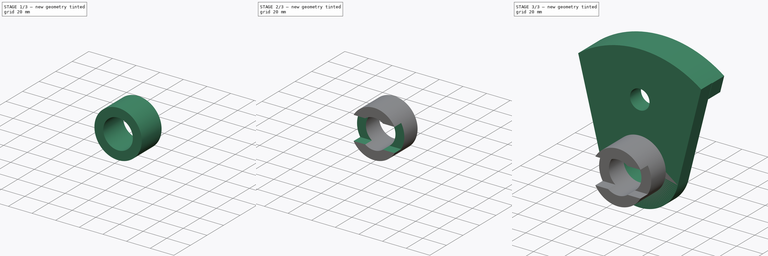
[diagram: build sequence overview — one tinted view per stage of 3, left to right]
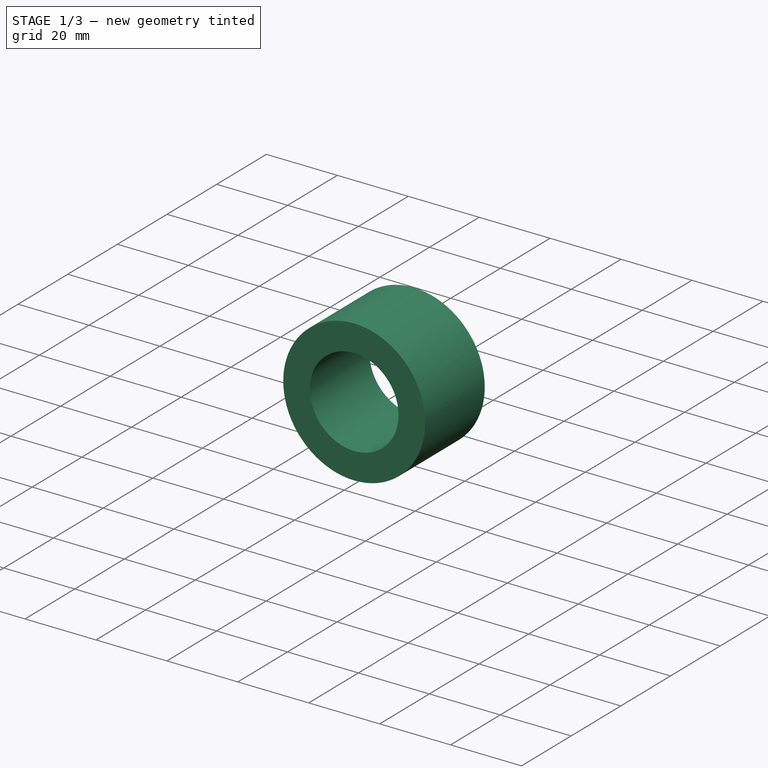
[diagram: stage 1 of 3 — iso view after this stage's code; geometry added in this stage tinted green]
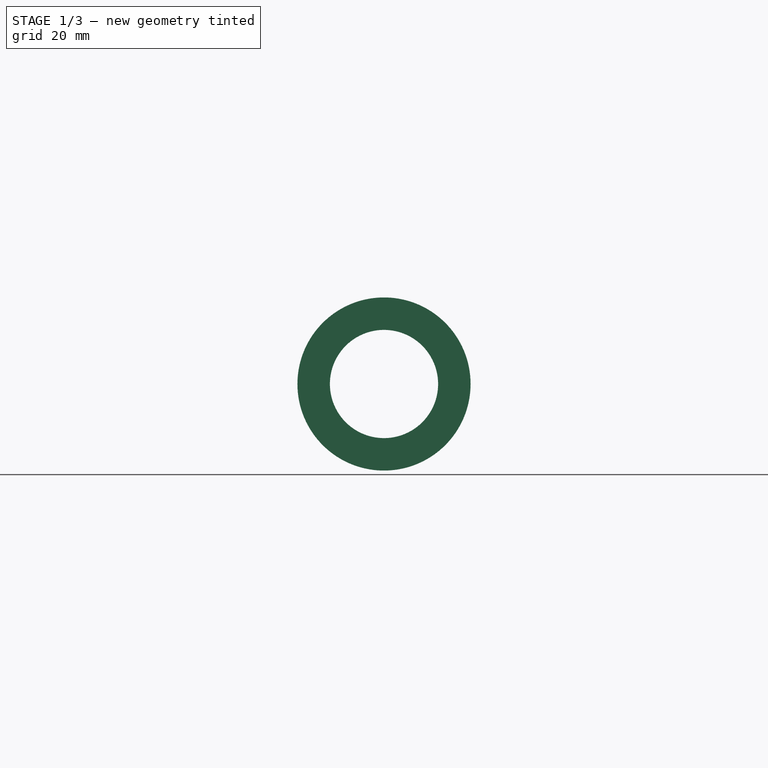
[diagram: stage 1 of 3 — front view after this stage's code; geometry added in this stage tinted green]
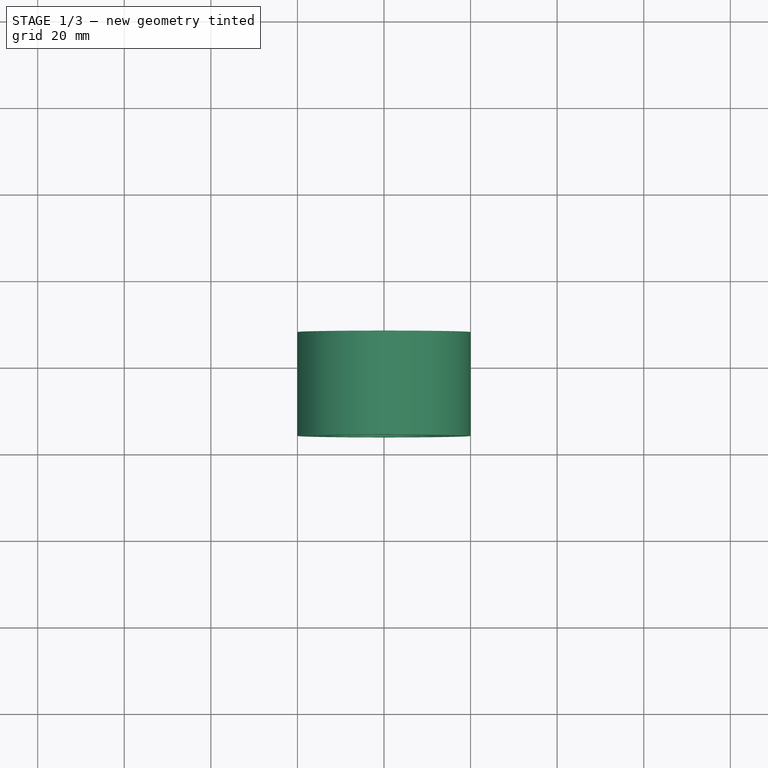
[diagram: stage 1 of 3 — top view after this stage's code; geometry added in this stage tinted green]
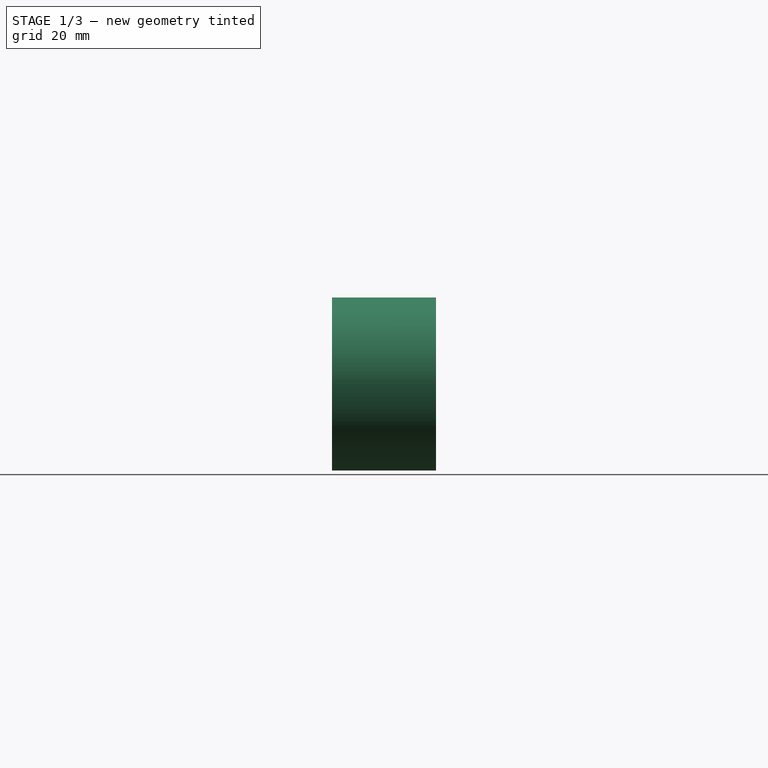
[diagram: stage 1 of 3 — right view after this stage's code; geometry added in this stage tinted green]
FCSTD DOCUMENT  (FreeCAD 0.20R29177 +426 (Git))
Label: 03 - Entrega de diseño de pieza
License: All rights reserved
LicenseURL: http://en.wikipedia.org/wiki/All_rights_reserved
objects: Sketcher::SketchObject×6, PartDesign::Pad×5, PartDesign::Body×5, Part::Cut×2, PartDesign::Pocket×1
note: 25 computed .brp shape members not serialized (recipe doc carries the construction recipe); baked Part::Feature solids carry a one-line shape summary decoded from their .brp

FEATURE [PartDesign::Body] Body001
  Group = -> [Sketch001,Pad001]
  Origin = -> Origin001
  Tip = -> Pad001
FEATURE [Sketcher::SketchObject] Sketch002
  FullyConstrained = true
  MapMode = 5
  Placement = pos=(0,0,0) rot=(1,0,0;1.5708rad)
  Support = -> [XZ_Plane002]
  sketch-geometry (1):
    g0: Circle CenterX=0 CenterY=30 CenterZ=0 NormalX=0 NormalY=0 NormalZ=1 AngleXU=0 Radius=20
  constraints (3):
    c: PointOnObject(g0,g-2)
    c: Diameter(g0) = 40
    c: DistanceY(g-1,g0) = 30
FEATURE [PartDesign::Pad] Pad002
  Direction = (0,-1,2e-16)
  Length = 24
  Length2 = 10
  Placement = pos=(0,0,0) rot=(1,0,0;1.5708rad)
  Profile = -> Sketch002
  ReferenceAxis = -> Sketch002 [N_Axis]
  Type = 0
FEATURE [PartDesign::Body] Body002  label="Cilindro 40"
  Group = -> [Sketch002,Pad002]
  Origin = -> Origin002
  Placement = pos=(0,-12,0) rot=(0,0,1;0rad)
  Tip = -> Pad002
  expr: .Placement.Base.z = 0mm
FEATURE [Sketcher::SketchObject] Sketch003
  FullyConstrained = true
  MapMode = 5
  Placement = pos=(0,0,0) rot=(1,0,0;1.5708rad)
  Support = -> [XZ_Plane003]
  sketch-geometry (1):
    g0: Circle CenterX=0 CenterY=30 CenterZ=0 NormalX=0 NormalY=0 NormalZ=1 AngleXU=0 Radius=12.5
  constraints (3):
    c: PointOnObject(g0,g-2)
    c: DistanceY(g-1,g0) = 30
    c: Diameter(g0) = 25
FEATURE [PartDesign::Pad] Pad003
  Direction = (0,-1,2e-16)
  Length = 36
  Length2 = 10
  Placement = pos=(0,0,0) rot=(1,0,0;1.5708rad)
  Profile = -> Sketch003
  ReferenceAxis = -> Sketch003 [N_Axis]
  Type = 0
FEATURE [PartDesign::Body] Body004  label="Rectangulo"
  Group = -> [Sketch004,Pad004]
  Origin = -> Origin004
  Placement = pos=(0,-28,0) rot=(0,0,1;0rad)
  Tip = -> Pad004
FEATURE [Part::Cut] Cut
  Base = -> Body002
  Tool = -> Body003
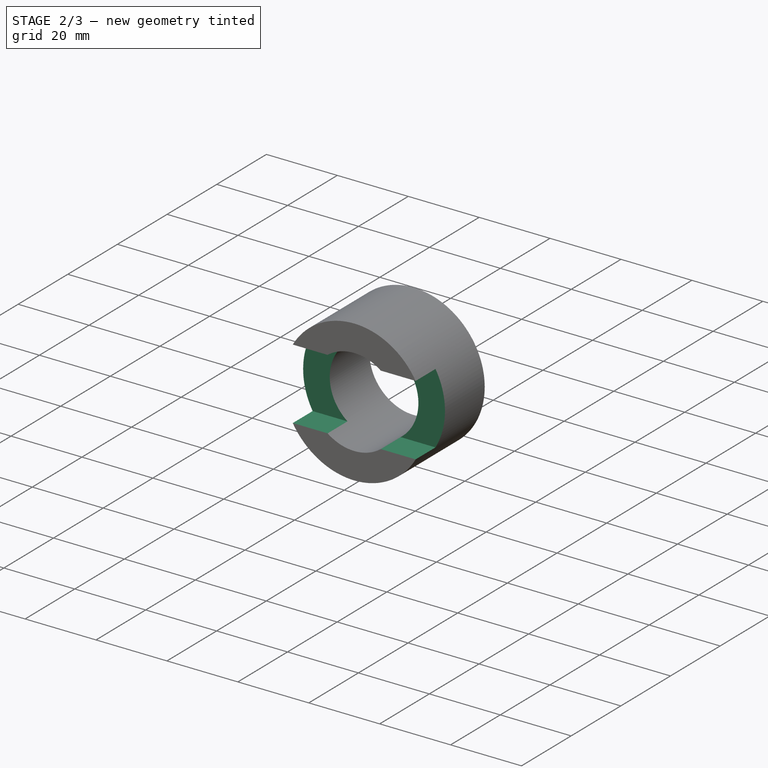
[diagram: stage 2 of 3 — iso view after this stage's code; geometry added in this stage tinted green]
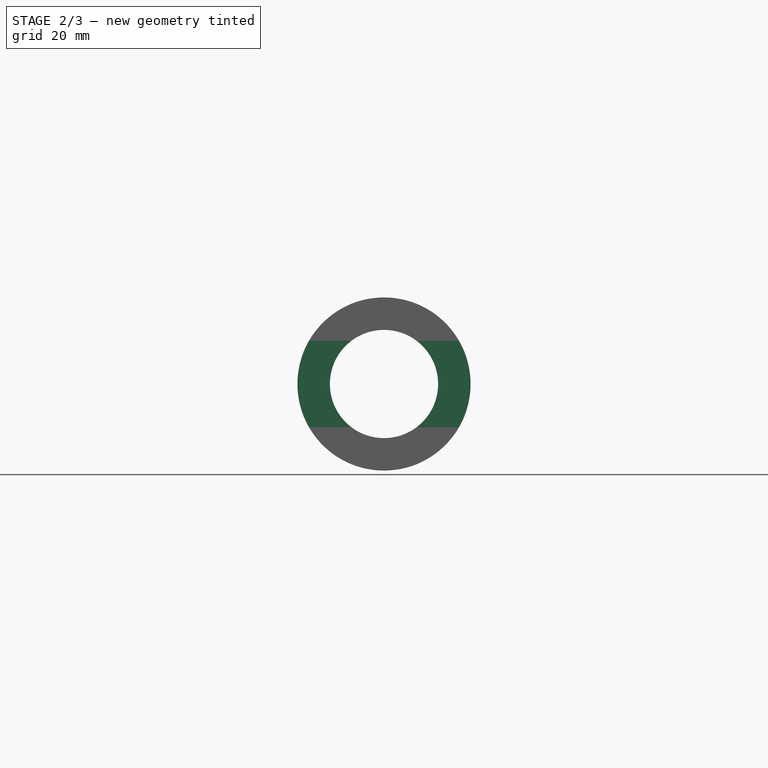
[diagram: stage 2 of 3 — front view after this stage's code; geometry added in this stage tinted green]
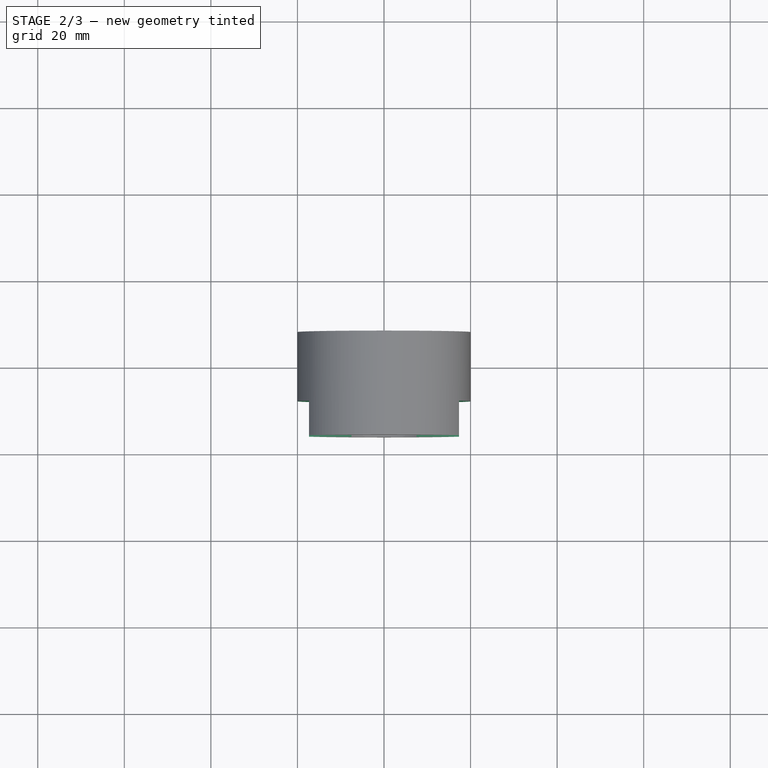
[diagram: stage 2 of 3 — top view after this stage's code; geometry added in this stage tinted green]
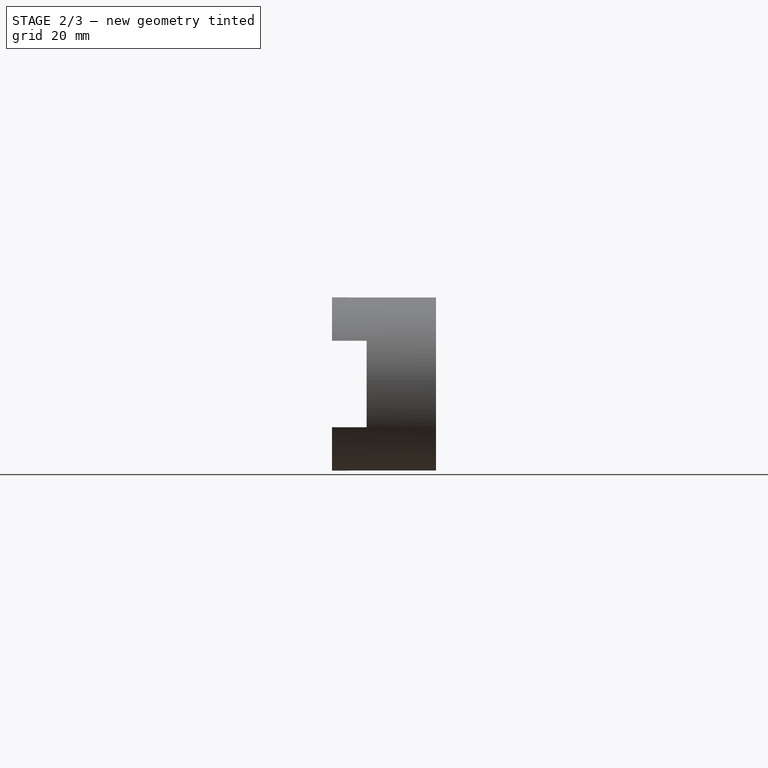
[diagram: stage 2 of 3 — right view after this stage's code; geometry added in this stage tinted green]
FEATURE [PartDesign::Body] Body003  label="Abertura inferior 25"
  Group = -> [Sketch003,Pad003]
  Origin = -> Origin003
  Tip = -> Pad003
FEATURE [Sketcher::SketchObject] Sketch004
  FullyConstrained = true
  MapMode = 5
  Placement = pos=(0,0,0) rot=(1,0,0;1.5708rad)
  Support = -> [XZ_Plane004]
  sketch-geometry (5):
    g0: LineSegment StartX=-20 StartY=30 StartZ=0 EndX=20 EndY=30 EndZ=0
    g1: LineSegment StartX=-20 StartY=40 StartZ=0 EndX=20 EndY=40 EndZ=0
    g2: LineSegment StartX=20 StartY=40 StartZ=0 EndX=20 EndY=20 EndZ=0
    g3: LineSegment StartX=20 StartY=20 StartZ=0 EndX=-20 EndY=20 EndZ=0
    g4: LineSegment StartX=-20 StartY=20 StartZ=0 EndX=-20 EndY=40 EndZ=0
  constraints (13):
    c: DistanceY(g-1,g0) = 30
    c: Symmetric(g0,g0,g-2)
    c: Coincident(g1,g2)
    c: Coincident(g2,g3)
    c: Coincident(g3,g4)
    c: Coincident(g4,g1)
    c: Horizontal(g1)
    c: Vertical(g2)
    c: Vertical(g4)
    c: DistanceX(g3,g3) = 40
    c: DistanceY(g2,g2) = 20
    c: Symmetric(g1,g2,g0)
    c: Symmetric(g2,g3,g-2)
FEATURE [PartDesign::Pad] Pad004
  Direction = (0,-1,2e-16)
  Length = 8
  Length2 = 10
  Placement = pos=(0,0,0) rot=(1,0,0;1.5708rad)
  Profile = -> Sketch004
  ReferenceAxis = -> Sketch004 [N_Axis]
  Type = 0
FEATURE [PartDesign::Body] Body
  Group = -> [Sketch,Pad,Sketch005,Pocket]
  Origin = -> Origin
  Tip = -> Pocket
FEATURE [Part::Cut] Cut001
  Base = -> Cut
  Tool = -> Body004
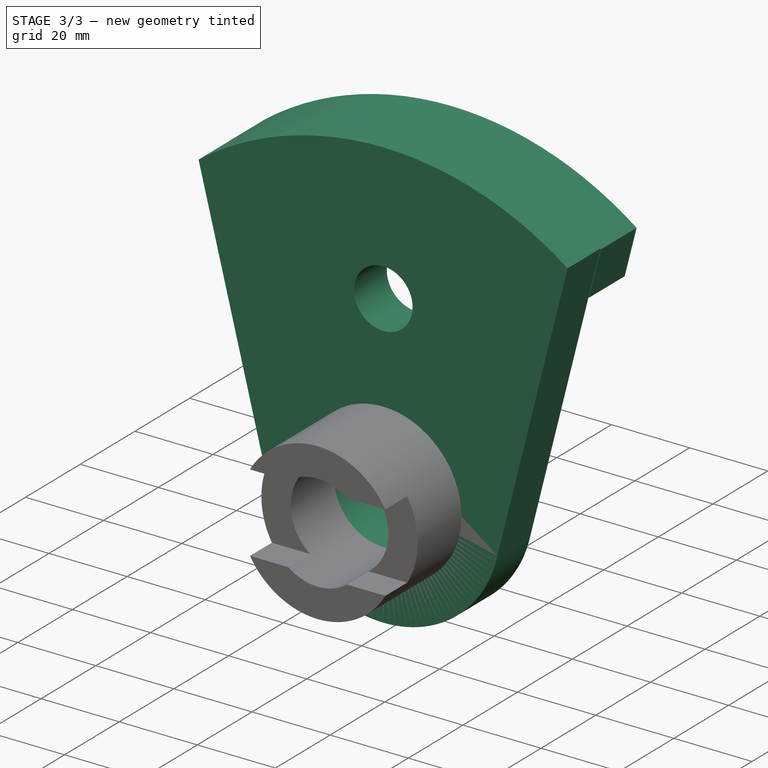
[diagram: stage 3 of 3 — iso view after this stage's code; geometry added in this stage tinted green]
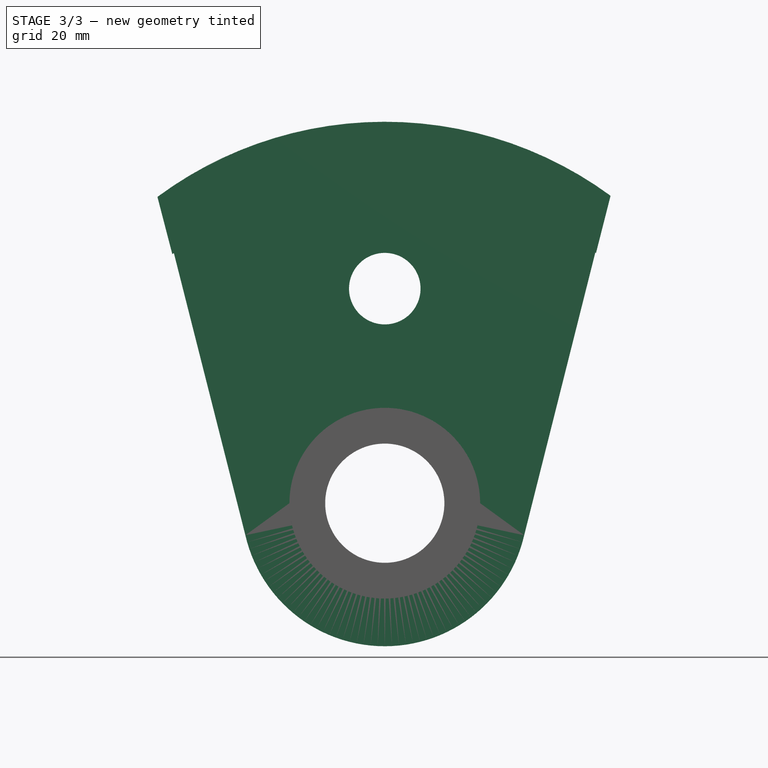
[diagram: stage 3 of 3 — front view after this stage's code; geometry added in this stage tinted green]
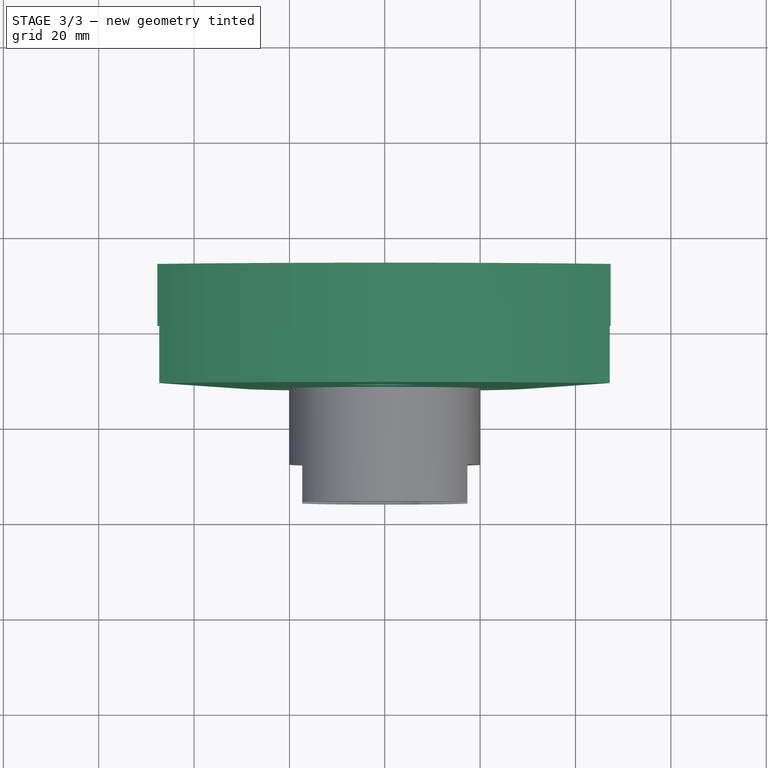
[diagram: stage 3 of 3 — top view after this stage's code; geometry added in this stage tinted green]
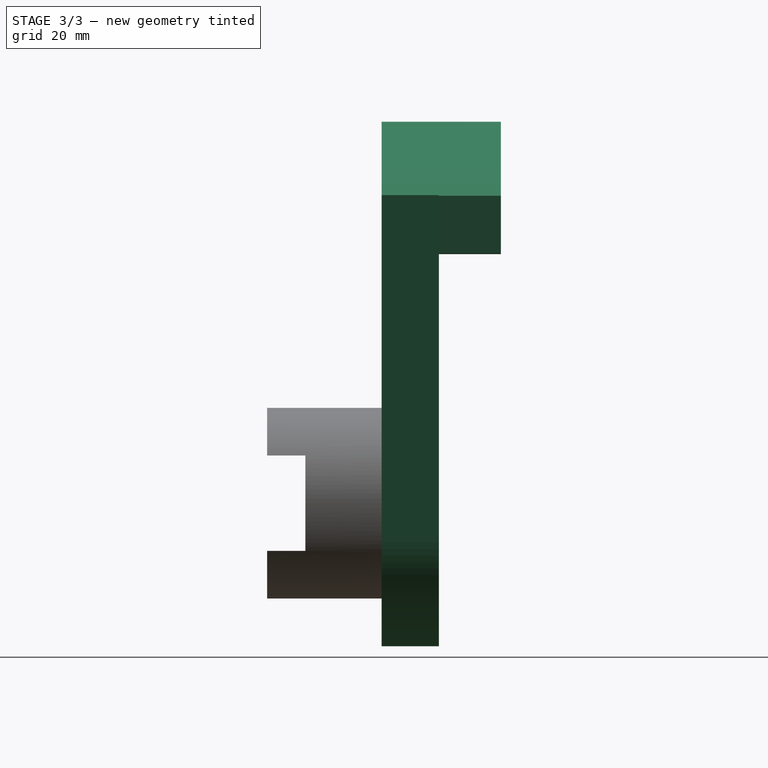
[diagram: stage 3 of 3 — right view after this stage's code; geometry added in this stage tinted green]
FEATURE [Sketcher::SketchObject] Sketch
  FullyConstrained = false
  MapMode = 5
  Placement = pos=(0,0,0) rot=(1,0,0;1.5708rad)
  Support = -> [XZ_Plane]
  sketch-geometry (7):
    g0: ArcOfCircle CenterX=0 CenterY=30 CenterZ=0 NormalX=0 NormalY=0 NormalZ=1 AngleXU=0 Radius=30 StartAngle=3.3675 EndAngle=6.05728
    g1: Circle CenterX=0 CenterY=75 CenterZ=0 NormalX=0 NormalY=0 NormalZ=1 AngleXU=0 Radius=7.5
    g2: LineSegment StartX=0 StartY=30 StartZ=0 EndX=189.144 EndY=30 EndZ=0
    g3: LineSegment StartX=0 StartY=30 StartZ=0 EndX=-142.458 EndY=30 EndZ=0
    g4: ArcOfCircle CenterX=0 CenterY=30 CenterZ=0 NormalX=0 NormalY=0 NormalZ=1 AngleXU=0 Radius=80 StartAngle=0.940009 EndAngle=2.20327
    g5: LineSegment StartX=29.2378 StartY=23.2803 StartZ=0 EndX=47.1824 EndY=94.6051 EndZ=0
    g6: LineSegment StartX=-29.2378 StartY=23.2803 StartZ=0 EndX=-47.2912 EndY=94.5255 EndZ=0
  constraints (16):
    c: PointOnObject(g0,g-2)
    c: Radius(g0) = 30
    c: PointOnObject(g-1,g0)
    c: PointOnObject(g1,g-2)
    c: DistanceY(g0,g1) = 45
    c: Diameter(g1) = 15
    c: Coincident(g2,g0)
    c: Horizontal(g2)
    c: Coincident(g3,g0)
    c: Horizontal(g3)
    c: Coincident(g4,g0)
    c: Radius(g4) = 80
    c: Coincident(g4,g5)
    c: Coincident(g6,g4)
    c: Coincident(g0,g5)
    c: Coincident(g0,g6)
FEATURE [PartDesign::Pad] Pad
  Direction = (0,-1,-2e-16)
  Length = 12
  Length2 = 10
  Placement = pos=(0,0,0) rot=(1,0,0;1.5708rad)
  Profile = -> Sketch
  ReferenceAxis = -> Sketch [N_Axis]
  Type = 0
FEATURE [Sketcher::SketchObject] Sketch001
  FullyConstrained = false
  MapMode = 5
  Placement = pos=(0,0,0) rot=(1,0,0;1.5708rad)
  Support = -> [XZ_Plane001]
  sketch-geometry (4):
    g0: ArcOfCircle CenterX=0 CenterY=30 CenterZ=0 NormalX=0 NormalY=0 NormalZ=1 AngleXU=0 Radius=80 StartAngle=0.937344 EndAngle=2.20935
    g1: ArcOfCircle CenterX=0.0502623 CenterY=15.8318 CenterZ=0 NormalX=0 NormalY=0 NormalZ=1 AngleXU=0 Radius=80 StartAngle=0.984674 EndAngle=2.16237
    g2: LineSegment StartX=44.301 StartY=82.4791 StartZ=0 EndX=47.3545 EndY=94.4791 EndZ=0
    g3: LineSegment StartX=-44.5632 StartY=82.2368 StartZ=0 EndX=-47.6826 EndY=94.2368 EndZ=0
  constraints (7):
    c: Coincident(g0,g2)
    c: Coincident(g3,g0)
    c: Equal(g0,g1) = 80
    c: DistanceY(g1,g0) = 12
    c: DistanceY(g1,g0) = 12
    c: Coincident(g2,g1)
    c: Coincident(g3,g1)
FEATURE [PartDesign::Pad] Pad001
  Direction = (0,-1,-2e-16)
  Length = 13
  Length2 = 10
  Placement = pos=(0,0,0) rot=(1,0,0;1.5708rad)
  Profile = -> Sketch001
  ReferenceAxis = -> Sketch001 [N_Axis]
  Reversed = true
  Type = 0
FEATURE [Sketcher::SketchObject] Sketch005
  FullyConstrained = true
  MapMode = 5
  Placement = pos=(0,-12,-2.7e-15) rot=(1,0,0;1.5708rad)
  Support = -> [Pad]
  sketch-geometry (1):
    g0: Circle CenterX=0 CenterY=30 CenterZ=0 NormalX=0 NormalY=0 NormalZ=1 AngleXU=0 Radius=12.5
  constraints (3):
    c: PointOnObject(g0,g-2)
    c: DistanceY(g-1,g0) = 30
    c: Diameter(g0) = 25
FEATURE [PartDesign::Pocket] Pocket
  BaseFeature = -> Pad
  Direction = (0,1,2e-16)
  Length = 5
  Length2 = 5
  Placement = pos=(0,0,0) rot=(1,0,0;1.5708rad)
  Profile = -> Sketch005
  ReferenceAxis = -> Sketch005 [N_Axis]
  Type = 1
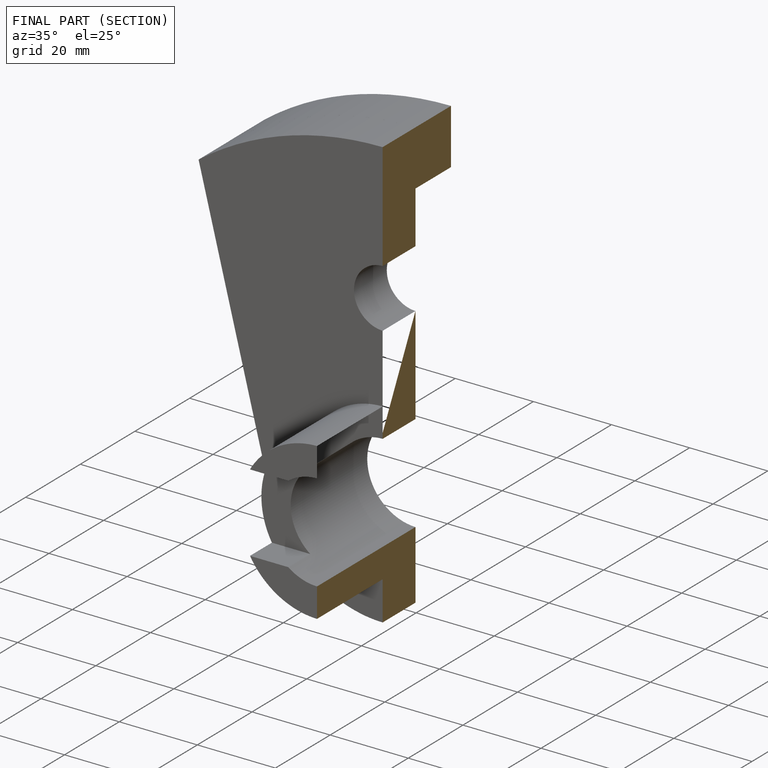
[diagram: finished part — half-section view (interior)]
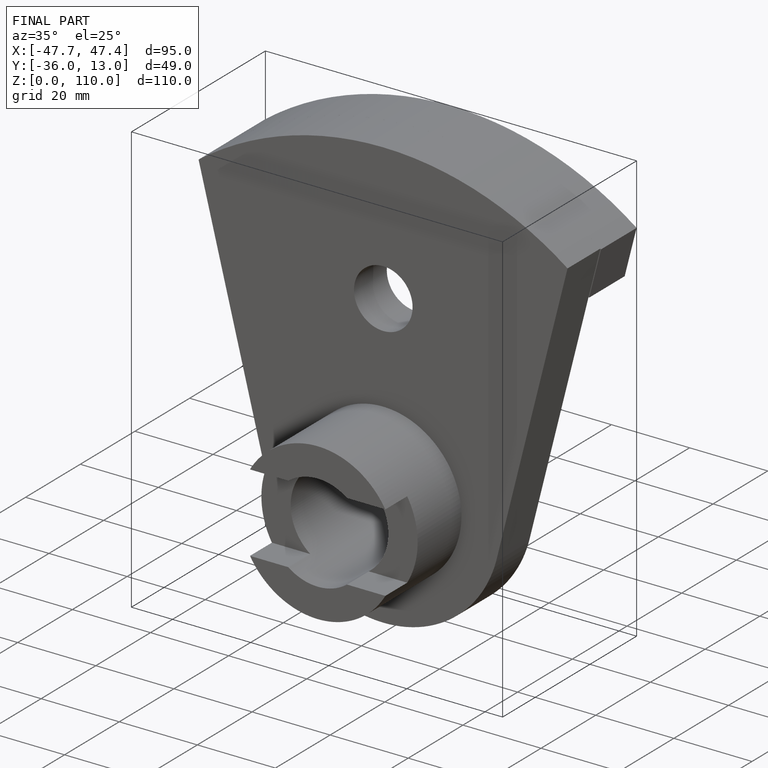
[diagram: finished part — iso view with bounding-box wireframe]
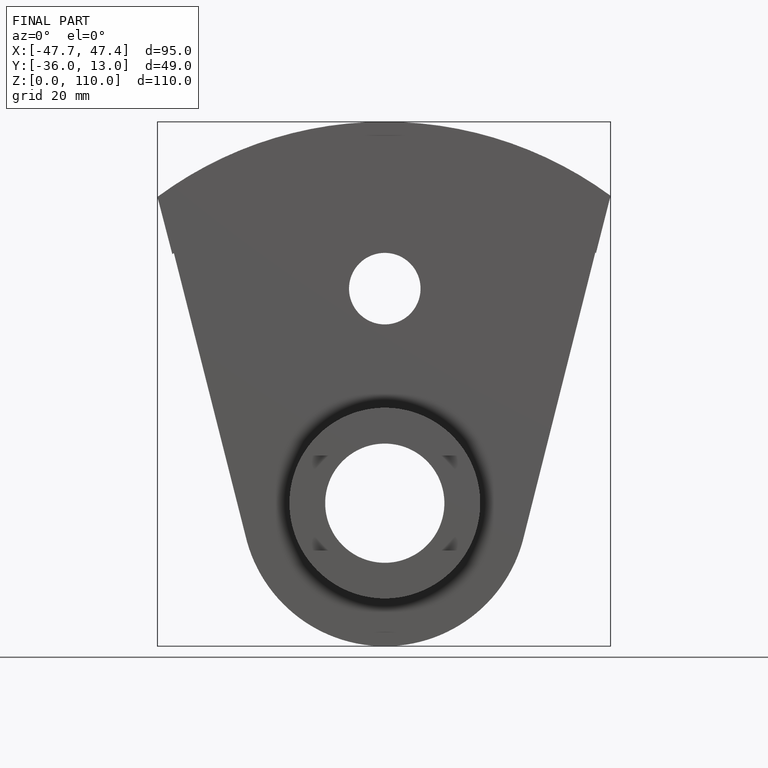
[diagram: finished part — front view with bounding-box wireframe]
